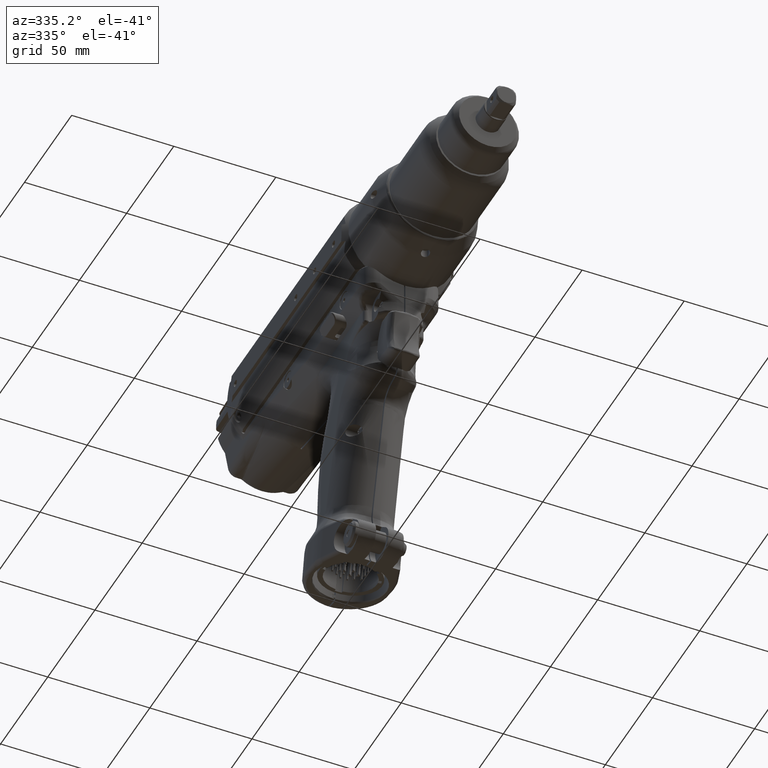
[diagram: clean part render]
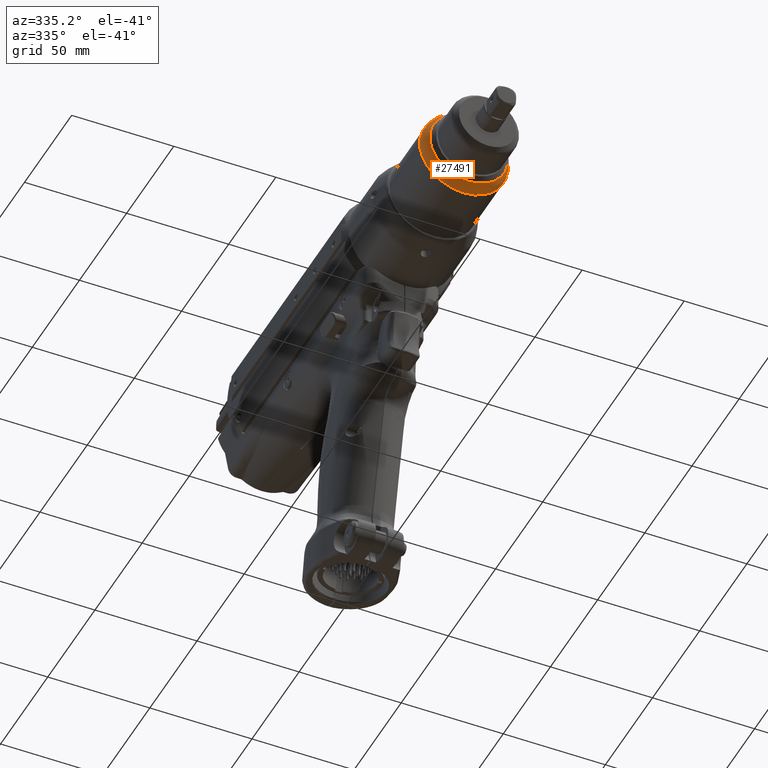
[diagram: same view with one face highlighted and labeled with its STEP entity id]
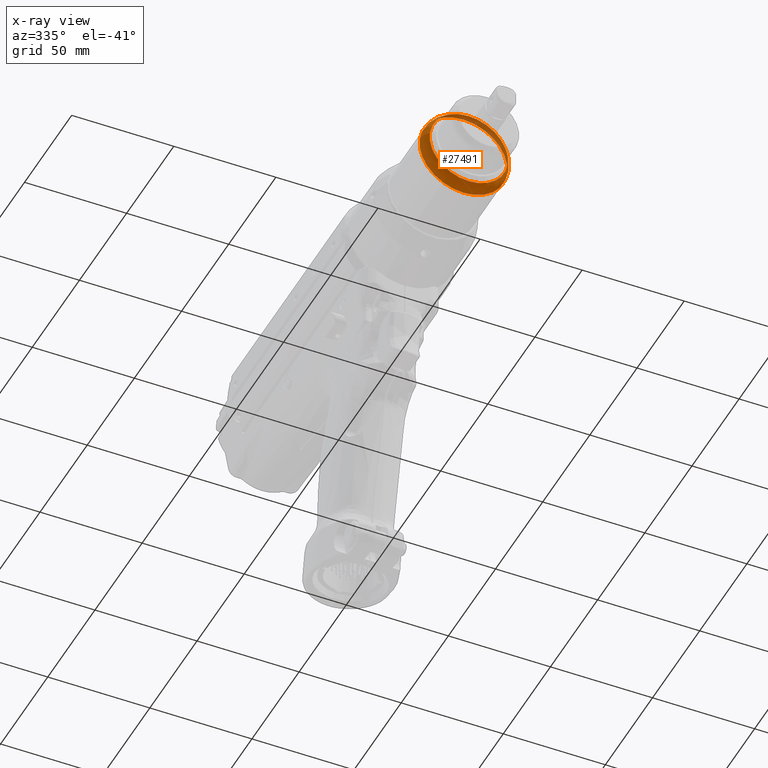
[diagram: x-ray of the same camera — body ghosted, the highlighted face saturated]
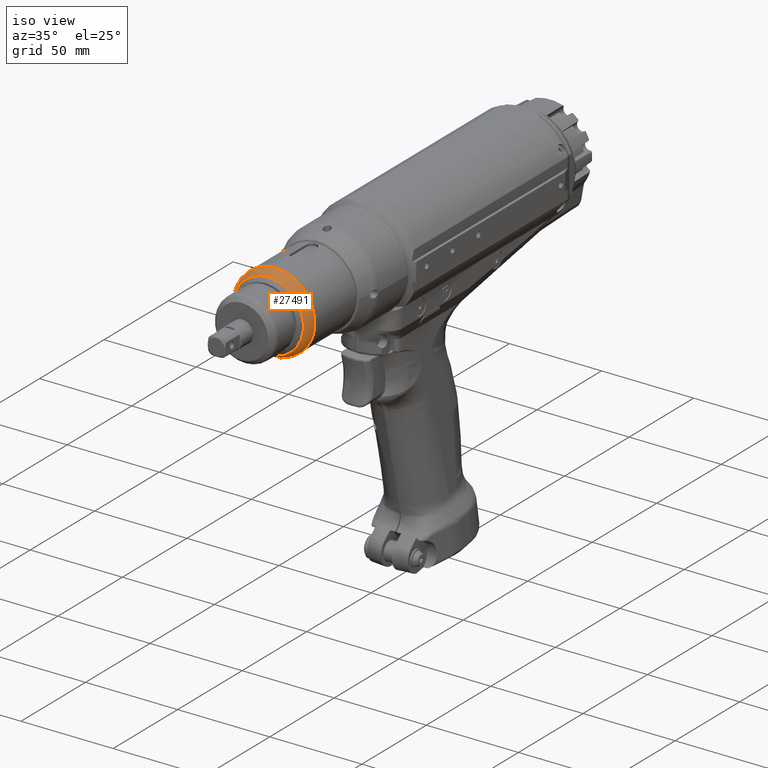
[diagram: same view with one face highlighted and labeled with its STEP entity id]
A machine part, auxiliary view. The second image highlights one B-rep face of the part: STEP entity #27491.
The next image is the same camera in x-ray: the body ghosted, the highlighted face saturated — about 10% of this face is hidden behind the body in this view.
A second angle (iso view) of the same face is appended — the face is thin or edge-on in the first view.
In plain terms, the highlighted toroidal blend (fillet) surface has major radius 13.5 mm and minor (blend) radius 8 mm.
Its self-contained STEP definition (entity closure, byte-faithful):
#135=TOROIDAL_SURFACE('',#29762,13.4999999999996,8.);
#1267=CIRCLE('',#29761,21.4999999999996);
#1268=CIRCLE('',#29763,8.);
#1269=CIRCLE('',#29764,19.1568531425545);
#3700=FACE_OUTER_BOUND('',#5269,.T.);
#5269=EDGE_LOOP('',(#23194,#23195,#23196,#23197));
#12278=VERTEX_POINT('',#75024);
#12285=VERTEX_POINT('',#75076);
#16066=EDGE_CURVE('',#12278,#12278,#1267,.T.);
#16073=EDGE_CURVE('',#12278,#12285,#1268,.T.);
#16074=EDGE_CURVE('',#12285,#12285,#1269,.T.);
#23194=ORIENTED_EDGE('',*,*,#16066,.F.);
#23195=ORIENTED_EDGE('',*,*,#16073,.T.);
#23196=ORIENTED_EDGE('',*,*,#16074,.T.);
#23197=ORIENTED_EDGE('',*,*,#16073,.F.);
#27491=ADVANCED_FACE('',(#3700),#135,.T.);
#29761=AXIS2_PLACEMENT_3D('',#75026,#35339,#35340);
#29762=AXIS2_PLACEMENT_3D('',#75075,#35343,#35344);
#29763=AXIS2_PLACEMENT_3D('',#75077,#35345,#35346);
#29764=AXIS2_PLACEMENT_3D('',#75078,#35347,#35348);
#35339=DIRECTION('center_axis',(7.06271319228893E-49,1.,2.1215929871344E-17));
#35340=DIRECTION('ref_axis',(1.,-7.06271319228893E-49,2.73691106313441E-48));
#35343=DIRECTION('center_axis',(7.06271319228893E-49,1.,2.1215929871344E-17));
#35344=DIRECTION('ref_axis',(0.,0.,1.));
#35345=DIRECTION('center_axis',(-1.,-2.59820206078762E-33,1.22464679914735E-16));
#35346=DIRECTION('ref_axis',(-1.22464679914735E-16,0.,-1.));
#35347=DIRECTION('center_axis',(7.06271319228893E-49,1.,2.1215929871344E-17));
#35348=DIRECTION('ref_axis',(1.,-7.06271319228893E-49,2.73691106313441E-48));
#75024=CARTESIAN_POINT('',(1.11084303114111E-15,25.8137084989847,-21.4999999999995));
#75026=CARTESIAN_POINT('Origin',(3.74383364930786E-15,25.8137084989847,
-1.70634895413049E-15));
#75075=CARTESIAN_POINT('Origin',(3.74383364930786E-15,25.8137084989847,
-1.70634895413049E-15));
#75076=CARTESIAN_POINT('',(1.39779576103133E-15,20.1568553564315,-19.1568531425545));
#75077=CARTESIAN_POINT('Origin',(2.09056047045899E-15,25.8137084989847,
-13.4999999999996));
#75078=CARTESIAN_POINT('Origin',(3.74383364930786E-15,20.1568553564315,
-1.82636435369539E-15));